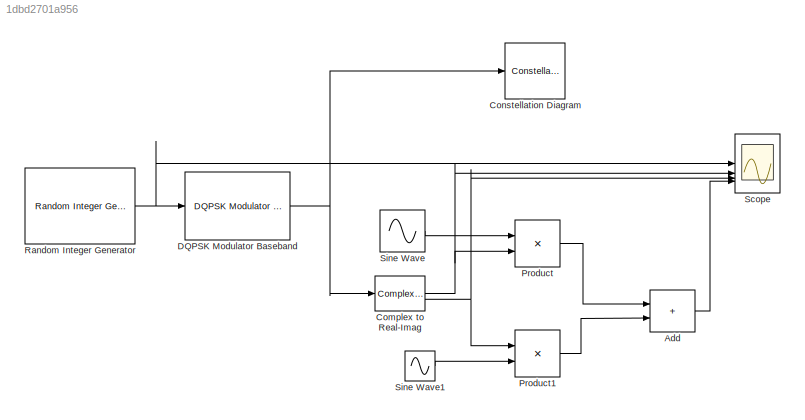
MODEL slx_1dbd2701a956
KIND model
CONFIG AbsTol = auto
CONFIG EnableMultiTasking = off
CONFIG FixedStep = auto
CONFIG MaxStep = auto
CONFIG MinStep = auto
CONFIG RelTol = 1e-3
CONFIG SampleTimeConstraint = Unconstrained
CONFIG SolverName = VariableStepAuto
CONFIG StartTime = 0.0
CONFIG StopTime = 10.0
BLOCK [Sum] Add
  IconShape = rectangular
BLOCK [ComplexToRealImag] Complex to Real-Imag
BLOCK [ConstellationDiagram] Constellation Diagram
  GraphicalSettings = {"Style":{"BackgroundColor":[0.12941176470588237,0.12941176470588237,0.12941176470588237],"AxesColor":[0.07058823529411765,0.07058823529411765,0.07058823529411765],"LabelsColor":[0.8509803921568627,0.8509803921568627,0.8509803921568627],"PreserveColors":false,"LineStyle":["NONE","NONE"],"LineWidth":[1,1],"LineColor":[[1,0.9098039215686274,0.39215686274509803],[1,0,0]],"Marker":[".","+"],"FontSize"...<+240ch>
  ScopeFrameLocation = window
  Visible = on
  WasSavedAsWebScope = on
  WindowPosition = [885.000000,168.000000,600.000000,600.000000,]
BLOCK [Reference] DQPSK Modulator Baseband  REF=commdigbbndpm3/DQPSK
Modulator
Baseband
  SourceBlock = commdigbbndpm3/DQPSK\nModulator\nBaseband
  SourceType = DQPSK Modulator Baseband
BLOCK [Product] Product
BLOCK [Product] Product1
BLOCK [Reference] Random Integer Generator  REF=commrandsrc3/Random Integer
Generator
  SourceBlock = commrandsrc3/Random Integer\nGenerator
  SourceType = Random Integer Generator
BLOCK [Scope] Scope
  Floating = off
  NumInputPorts = 4
  ScopeSpecificationString = Simulink.scopes.TimeScopeBlockCfg('CurrentConfiguration', extmgr.ConfigurationSet(extmgr.Configuration('Core','General UI',true),extmgr.Configuration('Core','Source UI',true),extmgr.Configuration('Sources','WiredSimulink',true),extmgr.Configuration('Visuals','Time Domain',true,'SerializedDisplays',{struct('MinYLimReal','-0.375','MaxYLimReal','3.375','YLabelReal','','MinYLimMag','0.00000','MaxYLimM...<+3886ch>
BLOCK [Sin] Sine Wave
  Frequency = 4*pi
  SampleTime = 0.001
BLOCK [Sin] Sine Wave1
  Frequency = 4*pi
  Phase = pi/2
  SampleTime = 0.001
LINE Add:1 -> Scope:4
NET Complex to Real-Imag:1 -> Product:2, Scope:2
NET Complex to Real-Imag:2 -> Product1:1, Scope:3
NET DQPSK Modulator Baseband:1 -> Complex to Real-Imag:1, Constellation Diagram:1
LINE Product1:1 -> Add:2
LINE Product:1 -> Add:1
NET Random Integer Generator:1 -> DQPSK Modulator Baseband:1, Scope:1
LINE Sine Wave1:1 -> Product1:2
LINE Sine Wave:1 -> Product:1
note: NET lines group one-source signal fan-out (src -> all destinations, sorted); 1:1 wires keep LINE
